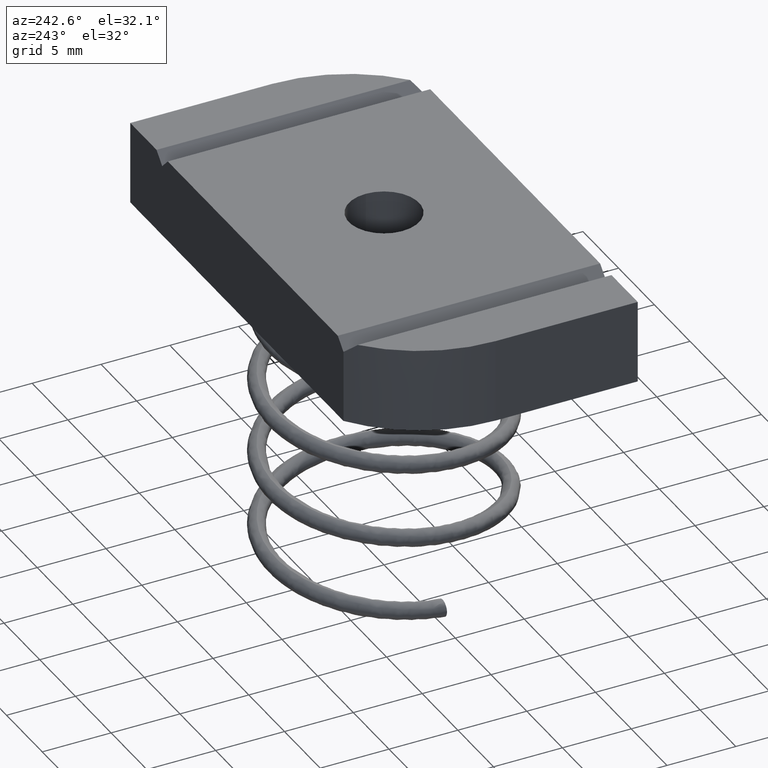
[diagram: clean part render]
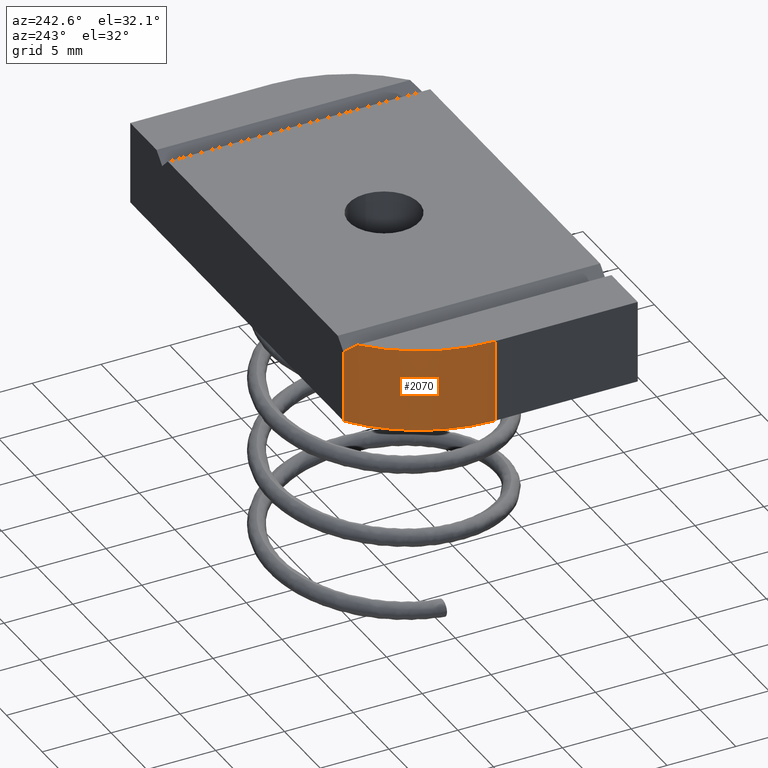
[diagram: same view with one face highlighted and labeled with its STEP entity id]
A machine part, auxiliary view. The second image highlights one B-rep face of the part: STEP entity #2070.
In plain terms, the highlighted cylindrical surface (partial cylindrical patch) has radius 10.7742 mm, axis along (-0, -0, -1).
Its self-contained STEP definition (entity closure, byte-faithful):
#79 = DIRECTION ( 'NONE',  ( -1.000000000000000000, 0.0000000000000000000, 0.0000000000000000000 ) ) ;
#85 = CARTESIAN_POINT ( 'NONE',  ( -0.2518181818181817700, 0.03100000000000002400, 0.1189999999999999900 ) ) ;
#86 = DIRECTION ( 'NONE',  ( -0.0000000000000000000, -0.0000000000000000000, -1.000000000000000000 ) ) ;
#267 = EDGE_LOOP ( 'NONE', ( #736, #740, #734, #737, #750 ) ) ;
#278 = AXIS2_PLACEMENT_3D ( 'NONE', #973, #1037, #1137 ) ;
#280 = AXIS2_PLACEMENT_3D ( 'NONE', #1115, #958, #1107 ) ;
#631 = LINE ( 'NONE', #980, #633 ) ;
#633 = VECTOR ( 'NONE', #967, 39.37007874015748100 ) ;
#637 = LINE ( 'NONE', #970, #638 ) ;
#638 = VECTOR ( 'NONE', #971, 39.37007874015748100 ) ;
#647 = CIRCLE ( 'NONE', #278, 0.4241818181818182200 ) ;
#649 = CIRCLE ( 'NONE', #280, 0.4241818181818182200 ) ;
#734 = ORIENTED_EDGE ( 'NONE', *, *, #759, .T. ) ;
#736 = ORIENTED_EDGE ( 'NONE', *, *, #764, .F. ) ;
#737 = ORIENTED_EDGE ( 'NONE', *, *, #765, .T. ) ;
#740 = ORIENTED_EDGE ( 'NONE', *, *, #767, .T. ) ;
#750 = ORIENTED_EDGE ( 'NONE', *, *, #757, .F. ) ;
#757 = EDGE_CURVE ( 'NONE', #1109, #943, #631, .T. ) ;
#759 = EDGE_CURVE ( 'NONE', #922, #1025, #637, .T. ) ;
#764 = EDGE_CURVE ( 'NONE', #1024, #1109, #647, .T. ) ;
#765 = EDGE_CURVE ( 'NONE', #1025, #943, #649, .T. ) ;
#767 = EDGE_CURVE ( 'NONE', #1024, #922, #2052, .T. ) ;
#906 = CARTESIAN_POINT ( 'NONE',  ( -0.6759999999999999300, 0.03100000000000002400, 0.1189999999999999900 ) ) ;
#907 = CARTESIAN_POINT ( 'NONE',  ( -0.5000000000000000000, 0.3750000000000000600, -0.1189999999999999900 ) ) ;
#922 = VERTEX_POINT ( 'NONE', #1094 ) ;
#943 = VERTEX_POINT ( 'NONE', #1100 ) ;
#958 = DIRECTION ( 'NONE',  ( 0.0000000000000000000, 0.0000000000000000000, 1.000000000000000000 ) ) ;
#959 = CARTESIAN_POINT ( 'NONE',  ( -0.5212276018830123100, 0.3589119345894124500, 0.1089776018830125700 ) ) ;
#967 = DIRECTION ( 'NONE',  ( -0.0000000000000000000, -0.0000000000000000000, -1.000000000000000000 ) ) ;
#970 = CARTESIAN_POINT ( 'NONE',  ( -0.5000000000000000000, 0.3750000000000000600, 0.1189999999999999900 ) ) ;
#971 = DIRECTION ( 'NONE',  ( -0.0000000000000000000, -0.0000000000000000000, -1.000000000000000000 ) ) ;
#973 = CARTESIAN_POINT ( 'NONE',  ( -0.2518181818181817700, 0.03100000000000002400, 0.1189999999999999900 ) ) ;
#980 = CARTESIAN_POINT ( 'NONE',  ( -0.6759999999999999300, 0.03100000000000002400, 0.1189999999999999900 ) ) ;
#1024 = VERTEX_POINT ( 'NONE', #1171 ) ;
#1025 = VERTEX_POINT ( 'NONE', #907 ) ;
#1037 = DIRECTION ( 'NONE',  ( 0.0000000000000000000, 0.0000000000000000000, 1.000000000000000000 ) ) ;
#1042 = CARTESIAN_POINT ( 'NONE',  ( -0.5108032315010988500, 0.3672059138483088100, 0.09855323150109901500 ) ) ;
#1051 = CARTESIAN_POINT ( 'NONE',  ( -0.5000000000000000000, 0.3750000000000000600, 0.08774999999999996700 ) ) ;
#1079 = CARTESIAN_POINT ( 'NONE',  ( -0.5312499999999996700, 0.3501364502272289500, 0.1189999999999999900 ) ) ;
#1094 = CARTESIAN_POINT ( 'NONE',  ( -0.5000000000000000000, 0.3750000000000000600, 0.08774999999999996700 ) ) ;
#1100 = CARTESIAN_POINT ( 'NONE',  ( -0.6759999999999999300, 0.03100000000000002400, -0.1189999999999999900 ) ) ;
#1107 = DIRECTION ( 'NONE',  ( -1.000000000000000000, 0.0000000000000000000, 0.0000000000000000000 ) ) ;
#1109 = VERTEX_POINT ( 'NONE', #906 ) ;
#1115 = CARTESIAN_POINT ( 'NONE',  ( -0.2518181818181817700, 0.03100000000000002400, -0.1189999999999999900 ) ) ;
#1137 = DIRECTION ( 'NONE',  ( -1.000000000000000000, 0.0000000000000000000, 0.0000000000000000000 ) ) ;
#1171 = CARTESIAN_POINT ( 'NONE',  ( -0.5312499999999996700, 0.3501364502272289500, 0.1189999999999999900 ) ) ;
#1322 = AXIS2_PLACEMENT_3D ( 'NONE', #85, #86, #79 ) ;
#1999 = FACE_OUTER_BOUND ( 'NONE', #267, .T. ) ;
#2004 = CYLINDRICAL_SURFACE ( 'NONE', #1322, 0.4241818181818182200 ) ;
#2052 =( BOUNDED_CURVE ( )  B_SPLINE_CURVE ( 3, ( #1079, #959, #1042, #1051 ),
 .UNSPECIFIED., .F., .T. ) 
 B_SPLINE_CURVE_WITH_KNOTS ( ( 4, 4 ),
 ( 3.993226455637453900, 4.087405860915651200 ),
 .UNSPECIFIED. ) 
 CURVE ( )  GEOMETRIC_REPRESENTATION_ITEM ( )  RATIONAL_B_SPLINE_CURVE ( ( 1.000000000000000000, 0.9992609898761521900, 0.9992609898761521900, 1.000000000000000000 ) ) 
 REPRESENTATION_ITEM ( '' )  );
#2070 = ADVANCED_FACE ( 'NONE', ( #1999 ), #2004, .T. ) ;